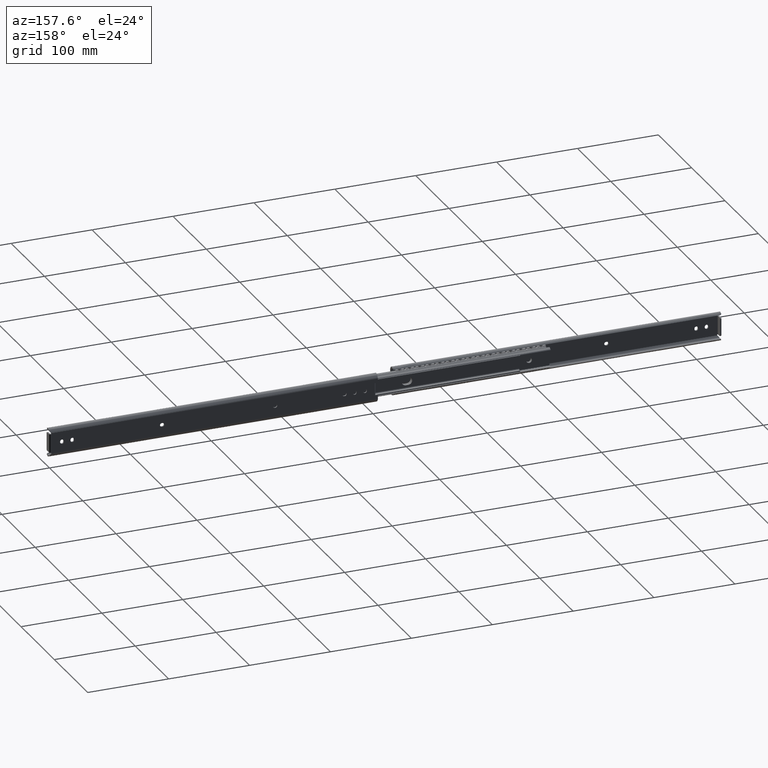
[diagram: clean part render]
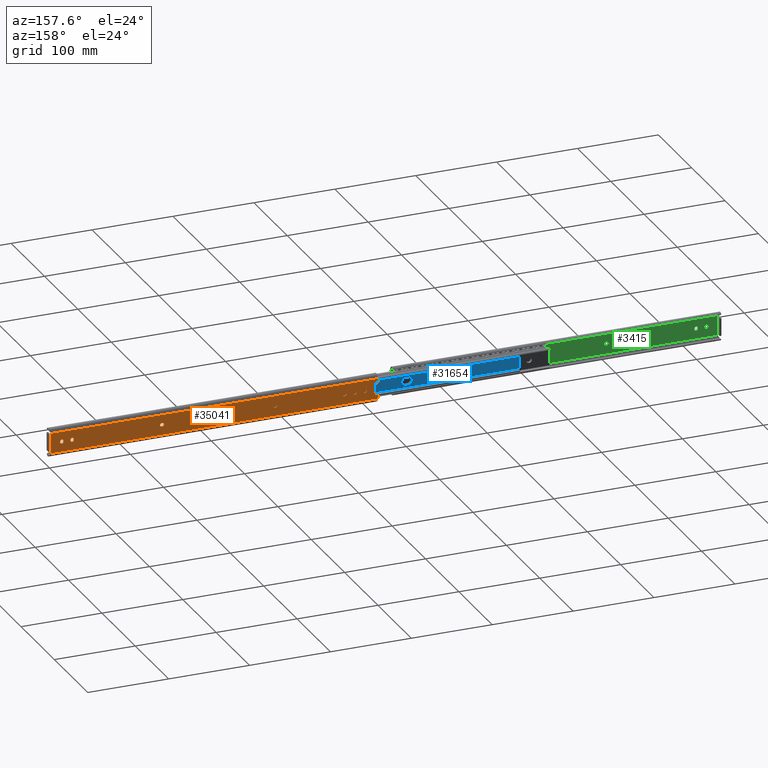
[diagram: same view with three faces highlighted in distinct colors, each labeled with its STEP entity id]
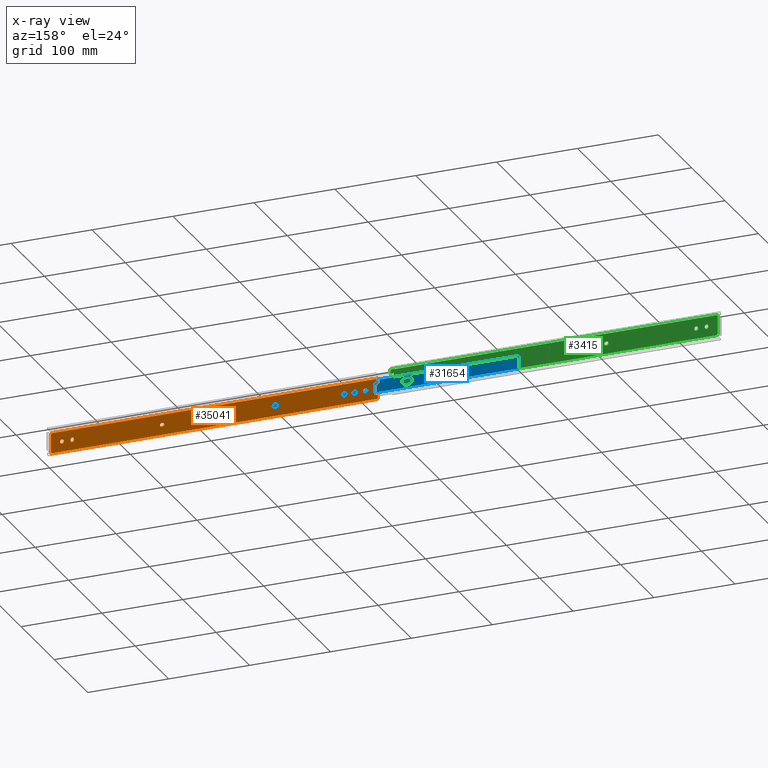
[diagram: x-ray of the same camera — body ghosted, the three highlighted faces saturated]
A machine part, auxiliary view with three faces highlighted in distinct colors.
The next image is the same camera in x-ray (body ghosted, the three faces saturated) — at least one of them is partly hidden behind the body in this view.
Their STEP definitions:

[orange] entity #35041 — the highlighted face is a freeform B-spline surface patch.
#31737=CARTESIAN_POINT('',(-17.750000000000000,0.0,-0.400000000000092));
#31738=VERTEX_POINT('',#31737);
#31746=CARTESIAN_POINT('',(-17.750000000000000,0.0,0.400000000000006));
#31747=VERTEX_POINT('',#31746);
#31748=CARTESIAN_POINT('',(-17.750000000000000,0.0,-0.400000000000092));
#31749=CARTESIAN_POINT('',(-17.750000000000000,0.0,0.400000000000006));
#31750=QUASI_UNIFORM_CURVE('',1,(#31748,#31749),.UNSPECIFIED.,.F.,.U.);
#31751=EDGE_CURVE('',#31738,#31747,#31750,.T.);
#31804=CARTESIAN_POINT('',(-13.250000000000000,0.0,0.400000000000006));
#31805=VERTEX_POINT('',#31804);
#31806=CARTESIAN_POINT('',(-13.250000000000000,0.0,0.400000000000006));
#31807=CARTESIAN_POINT('',(-13.250000000000004,0.0,2.650000000000006));
#31808=CARTESIAN_POINT('',(-15.500000000000000,0.0,2.650000000000005));
#31809=CARTESIAN_POINT('',(-17.750000000000004,0.0,2.650000000000006));
#31810=CARTESIAN_POINT('',(-17.750000000000000,0.0,0.400000000000006));
#31818=(BOUNDED_CURVE()B_SPLINE_CURVE(2,(#31806,#31807,#31808,#31809,#31810),.UNSPECIFIED.,.F.,.U.)B_SPLINE_CURVE_WITH_KNOTS((3,2,3),(0.0,0.500000000000000,1.0),.UNSPECIFIED.)CURVE()GEOMETRIC_REPRESENTATION_ITEM()RATIONAL_B_SPLINE_CURVE((1.0,0.707106781186547,1.0,0.707106781186547,1.0))REPRESENTATION_ITEM(''));
#31819=EDGE_CURVE('',#31805,#31747,#31818,.T.);
#31835=CARTESIAN_POINT('',(-13.250000000000000,0.0,-0.400000000000091));
#31836=VERTEX_POINT('',#31835);
#31837=CARTESIAN_POINT('',(-13.250000000000000,0.0,0.400000000000006));
#31838=CARTESIAN_POINT('',(-13.250000000000000,0.0,-0.400000000000091));
#31839=QUASI_UNIFORM_CURVE('',1,(#31837,#31838),.UNSPECIFIED.,.F.,.U.);
#31840=EDGE_CURVE('',#31805,#31836,#31839,.T.);
#31891=CARTESIAN_POINT('',(-17.750000000000000,0.0,-0.400000000000091));
#31892=CARTESIAN_POINT('',(-17.750000000000004,0.0,-2.650000000000091));
#31893=CARTESIAN_POINT('',(-15.500000000000000,0.0,-2.650000000000091));
#31894=CARTESIAN_POINT('',(-13.250000000000004,0.0,-2.650000000000091));
#31895=CARTESIAN_POINT('',(-13.250000000000000,0.0,-0.400000000000091));
#31903=(BOUNDED_CURVE()B_SPLINE_CURVE(2,(#31891,#31892,#31893,#31894,#31895),.UNSPECIFIED.,.F.,.U.)B_SPLINE_CURVE_WITH_KNOTS((3,2,3),(0.0,0.500000000000000,1.0),.UNSPECIFIED.)CURVE()GEOMETRIC_REPRESENTATION_ITEM()RATIONAL_B_SPLINE_CURVE((1.0,0.707106781186547,1.0,0.707106781186547,1.0))REPRESENTATION_ITEM(''));
#31904=EDGE_CURVE('',#31738,#31836,#31903,.T.);
#31915=CARTESIAN_POINT('',(-375.149999999999980,0.0,0.400000000000007));
#31916=VERTEX_POINT('',#31915);
#31924=CARTESIAN_POINT('',(-375.149999999999980,0.0,-0.400000000000091));
#31925=VERTEX_POINT('',#31924);
#31926=CARTESIAN_POINT('',(-375.149999999999980,0.0,0.400000000000007));
#31927=CARTESIAN_POINT('',(-375.149999999999980,0.0,-0.400000000000091));
#31928=QUASI_UNIFORM_CURVE('',1,(#31926,#31927),.UNSPECIFIED.,.F.,.U.);
#31929=EDGE_CURVE('',#31916,#31925,#31928,.T.);
#31982=CARTESIAN_POINT('',(-379.649999999999980,0.0,-0.400000000000091));
#31983=VERTEX_POINT('',#31982);
#31984=CARTESIAN_POINT('',(-379.649999999999980,0.0,-0.400000000000091));
#31985=CARTESIAN_POINT('',(-379.650000000000090,0.0,-2.650000000000091));
#31986=CARTESIAN_POINT('',(-377.399999999999980,0.0,-2.650000000000091));
#31987=CARTESIAN_POINT('',(-375.150000000000090,0.0,-2.650000000000091));
#31988=CARTESIAN_POINT('',(-375.149999999999980,0.0,-0.400000000000091));
#31996=(BOUNDED_CURVE()B_SPLINE_CURVE(2,(#31984,#31985,#31986,#31987,#31988),.UNSPECIFIED.,.F.,.U.)B_SPLINE_CURVE_WITH_KNOTS((3,2,3),(0.0,0.500000000000000,1.0),.UNSPECIFIED.)CURVE()GEOMETRIC_REPRESENTATION_ITEM()RATIONAL_B_SPLINE_CURVE((1.0,0.707106781186547,1.0,0.707106781186547,1.0))REPRESENTATION_ITEM(''));
#31997=EDGE_CURVE('',#31983,#31925,#31996,.T.);
#32013=CARTESIAN_POINT('',(-379.649999999999980,0.0,0.400000000000006));
#32014=VERTEX_POINT('',#32013);
#32015=CARTESIAN_POINT('',(-379.649999999999980,0.0,-0.400000000000091));
#32016=CARTESIAN_POINT('',(-379.649999999999980,0.0,0.400000000000006));
#32017=QUASI_UNIFORM_CURVE('',1,(#32015,#32016),.UNSPECIFIED.,.F.,.U.);
#32018=EDGE_CURVE('',#31983,#32014,#32017,.T.);
#32069=CARTESIAN_POINT('',(-375.149999999999980,0.0,0.400000000000006));
#32070=CARTESIAN_POINT('',(-375.150000000000090,0.0,2.650000000000006));
#32071=CARTESIAN_POINT('',(-377.399999999999980,0.0,2.650000000000005));
#32072=CARTESIAN_POINT('',(-379.650000000000090,0.0,2.650000000000006));
#32073=CARTESIAN_POINT('',(-379.649999999999980,0.0,0.400000000000006));
#32081=(BOUNDED_CURVE()B_SPLINE_CURVE(2,(#32069,#32070,#32071,#32072,#32073),.UNSPECIFIED.,.F.,.U.)B_SPLINE_CURVE_WITH_KNOTS((3,2,3),(0.0,0.500000000000000,1.0),.UNSPECIFIED.)CURVE()GEOMETRIC_REPRESENTATION_ITEM()RATIONAL_B_SPLINE_CURVE((1.0,0.707106781186547,1.0,0.707106781186547,1.0))REPRESENTATION_ITEM(''));
#32082=EDGE_CURVE('',#31916,#32014,#32081,.T.);
#32093=CARTESIAN_POINT('',(-392.350000000000020,0.0,-0.400000000000092));
#32094=VERTEX_POINT('',#32093);
#32102=CARTESIAN_POINT('',(-392.350000000000020,0.0,0.400000000000006));
#32103=VERTEX_POINT('',#32102);
#32104=CARTESIAN_POINT('',(-392.350000000000020,0.0,-0.400000000000092));
#32105=CARTESIAN_POINT('',(-392.350000000000020,0.0,0.400000000000006));
#32106=QUASI_UNIFORM_CURVE('',1,(#32104,#32105),.UNSPECIFIED.,.F.,.U.);
#32107=EDGE_CURVE('',#32094,#32103,#32106,.T.);
#32160=CARTESIAN_POINT('',(-387.850000000000020,0.0,0.400000000000006));
#32161=VERTEX_POINT('',#32160);
#32162=CARTESIAN_POINT('',(-387.850000000000020,0.0,0.400000000000006));
#32163=CARTESIAN_POINT('',(-387.850000000000080,0.0,2.650000000000006));
#32164=CARTESIAN_POINT('',(-390.100000000000020,0.0,2.650000000000005));
#32165=CARTESIAN_POINT('',(-392.350000000000020,0.0,2.650000000000006));
#32166=CARTESIAN_POINT('',(-392.350000000000020,0.0,0.400000000000006));
#32174=(BOUNDED_CURVE()B_SPLINE_CURVE(2,(#32162,#32163,#32164,#32165,#32166),.UNSPECIFIED.,.F.,.U.)B_SPLINE_CURVE_WITH_KNOTS((3,2,3),(0.0,0.500000000000000,1.0),.UNSPECIFIED.)CURVE()GEOMETRIC_REPRESENTATION_ITEM()RATIONAL_B_SPLINE_CURVE((1.0,0.707106781186547,1.0,0.707106781186547,1.0))REPRESENTATION_ITEM(''));
#32175=EDGE_CURVE('',#32161,#32103,#32174,.T.);
#32191=CARTESIAN_POINT('',(-387.850000000000020,0.0,-0.400000000000091));
#32192=VERTEX_POINT('',#32191);
#32193=CARTESIAN_POINT('',(-387.850000000000020,0.0,0.400000000000006));
#32194=CARTESIAN_POINT('',(-387.850000000000020,0.0,-0.400000000000091));
#32195=QUASI_UNIFORM_CURVE('',1,(#32193,#32194),.UNSPECIFIED.,.F.,.U.);
#32196=EDGE_CURVE('',#32161,#32192,#32195,.T.);
#32247=CARTESIAN_POINT('',(-392.350000000000020,0.0,-0.400000000000091));
#32248=CARTESIAN_POINT('',(-392.350000000000020,0.0,-2.650000000000091));
#32249=CARTESIAN_POINT('',(-390.100000000000020,0.0,-2.650000000000091));
#32250=CARTESIAN_POINT('',(-387.850000000000080,0.0,-2.650000000000091));
#32251=CARTESIAN_POINT('',(-387.850000000000020,0.0,-0.400000000000091));
#32259=(BOUNDED_CURVE()B_SPLINE_CURVE(2,(#32247,#32248,#32249,#32250,#32251),.UNSPECIFIED.,.F.,.U.)B_SPLINE_CURVE_WITH_KNOTS((3,2,3),(0.0,0.500000000000000,1.0),.UNSPECIFIED.)CURVE()GEOMETRIC_REPRESENTATION_ITEM()RATIONAL_B_SPLINE_CURVE((1.0,0.707106781186547,1.0,0.707106781186547,1.0))REPRESENTATION_ITEM(''));
#32260=EDGE_CURVE('',#32094,#32192,#32259,.T.);
#32303=CARTESIAN_POINT('',(-364.300000000000010,0.0,2.250000000000000));
#32304=VERTEX_POINT('',#32303);
#32310=CARTESIAN_POINT('',(-364.300000000000010,0.0,-2.250000000000000));
#32311=VERTEX_POINT('',#32310);
#32312=CARTESIAN_POINT('',(-364.300000000000010,0.0,-2.250000000000000));
#32313=CARTESIAN_POINT('',(-362.049999999999950,0.0,-2.250000000000000));
#32314=CARTESIAN_POINT('',(-362.050000000000010,0.0,0.0));
#32315=CARTESIAN_POINT('',(-362.049999999999950,0.0,2.250000000000000));
#32316=CARTESIAN_POINT('',(-364.300000000000010,0.0,2.250000000000000));
#32324=(BOUNDED_CURVE()B_SPLINE_CURVE(2,(#32312,#32313,#32314,#32315,#32316),.UNSPECIFIED.,.F.,.U.)B_SPLINE_CURVE_WITH_KNOTS((3,2,3),(0.0,0.500000000000000,1.0),.UNSPECIFIED.)CURVE()GEOMETRIC_REPRESENTATION_ITEM()RATIONAL_B_SPLINE_CURVE((1.0,0.707106781186547,1.0,0.707106781186547,1.0))REPRESENTATION_ITEM(''));
#32325=EDGE_CURVE('',#32311,#32304,#32324,.T.);
#32340=CARTESIAN_POINT('',(-365.100000000000020,0.0,2.250000000000000));
#32341=VERTEX_POINT('',#32340);
#32349=CARTESIAN_POINT('',(-365.100000000000020,0.0,2.250000000000000));
#32350=CARTESIAN_POINT('',(-364.300000000000010,0.0,2.250000000000000));
#32351=QUASI_UNIFORM_CURVE('',1,(#32349,#32350),.UNSPECIFIED.,.F.,.U.);
#32352=EDGE_CURVE('',#32341,#32304,#32351,.T.);
#32398=CARTESIAN_POINT('',(-365.100000000000020,0.0,-2.250000000000000));
#32399=VERTEX_POINT('',#32398);
#32405=CARTESIAN_POINT('',(-365.100000000000020,0.0,2.250000000000000));
#32406=CARTESIAN_POINT('',(-367.349999999999970,0.0,2.250000000000000));
#32407=CARTESIAN_POINT('',(-367.350000000000020,0.0,0.0));
#32408=CARTESIAN_POINT('',(-367.349999999999970,0.0,-2.250000000000000));
#32409=CARTESIAN_POINT('',(-365.100000000000020,0.0,-2.250000000000000));
#32417=(BOUNDED_CURVE()B_SPLINE_CURVE(2,(#32405,#32406,#32407,#32408,#32409),.UNSPECIFIED.,.F.,.U.)B_SPLINE_CURVE_WITH_KNOTS((3,2,3),(0.0,0.500000000000000,1.0),.UNSPECIFIED.)CURVE()GEOMETRIC_REPRESENTATION_ITEM()RATIONAL_B_SPLINE_CURVE((1.0,0.707106781186547,1.0,0.707106781186547,1.0))REPRESENTATION_ITEM(''));
#32418=EDGE_CURVE('',#32341,#32399,#32417,.T.);
#32430=CARTESIAN_POINT('',(-364.300000000000010,0.0,-2.250000000000000));
#32431=CARTESIAN_POINT('',(-365.100000000000020,0.0,-2.250000000000000));
#32432=QUASI_UNIFORM_CURVE('',1,(#32430,#32431),.UNSPECIFIED.,.F.,.U.);
#32433=EDGE_CURVE('',#32311,#32399,#32432,.T.);
#32449=CARTESIAN_POINT('',(-30.449999999999999,0.0,-0.400000000000092));
#32450=VERTEX_POINT('',#32449);
#32458=CARTESIAN_POINT('',(-30.449999999999999,0.0,0.400000000000006));
#32459=VERTEX_POINT('',#32458);
#32460=CARTESIAN_POINT('',(-30.449999999999999,0.0,-0.400000000000092));
#32461=CARTESIAN_POINT('',(-30.449999999999999,0.0,0.400000000000006));
#32462=QUASI_UNIFORM_CURVE('',1,(#32460,#32461),.UNSPECIFIED.,.F.,.U.);
#32463=EDGE_CURVE('',#32450,#32459,#32462,.T.);
#32516=CARTESIAN_POINT('',(-25.949999999999999,0.0,0.400000000000006));
#32517=VERTEX_POINT('',#32516);
#32518=CARTESIAN_POINT('',(-25.949999999999999,0.0,0.400000000000006));
#32519=CARTESIAN_POINT('',(-25.950000000000003,0.0,2.650000000000006));
#32520=CARTESIAN_POINT('',(-28.199999999999999,0.0,2.650000000000005));
#32521=CARTESIAN_POINT('',(-30.449999999999999,0.0,2.650000000000006));
#32522=CARTESIAN_POINT('',(-30.449999999999999,0.0,0.400000000000006));
#32530=(BOUNDED_CURVE()B_SPLINE_CURVE(2,(#32518,#32519,#32520,#32521,#32522),.UNSPECIFIED.,.F.,.U.)B_SPLINE_CURVE_WITH_KNOTS((3,2,3),(0.0,0.500000000000000,1.0),.UNSPECIFIED.)CURVE()GEOMETRIC_REPRESENTATION_ITEM()RATIONAL_B_SPLINE_CURVE((1.0,0.707106781186547,1.0,0.707106781186547,1.0))REPRESENTATION_ITEM(''));
#32531=EDGE_CURVE('',#32517,#32459,#32530,.T.);
#32547=CARTESIAN_POINT('',(-25.949999999999999,0.0,-0.400000000000091));
#32548=VERTEX_POINT('',#32547);
#32549=CARTESIAN_POINT('',(-25.949999999999999,0.0,0.400000000000006));
#32550=CARTESIAN_POINT('',(-25.949999999999999,0.0,-0.400000000000091));
#32551=QUASI_UNIFORM_CURVE('',1,(#32549,#32550),.UNSPECIFIED.,.F.,.U.);
#32552=EDGE_CURVE('',#32517,#32548,#32551,.T.);
#32603=CARTESIAN_POINT('',(-30.449999999999999,0.0,-0.400000000000091));
#32604=CARTESIAN_POINT('',(-30.449999999999999,0.0,-2.650000000000091));
#32605=CARTESIAN_POINT('',(-28.199999999999999,0.0,-2.650000000000091));
#32606=CARTESIAN_POINT('',(-25.950000000000003,0.0,-2.650000000000091));
#32607=CARTESIAN_POINT('',(-25.949999999999999,0.0,-0.400000000000091));
#32615=(BOUNDED_CURVE()B_SPLINE_CURVE(2,(#32603,#32604,#32605,#32606,#32607),.UNSPECIFIED.,.F.,.U.)B_SPLINE_CURVE_WITH_KNOTS((3,2,3),(0.0,0.500000000000000,1.0),.UNSPECIFIED.)CURVE()GEOMETRIC_REPRESENTATION_ITEM()RATIONAL_B_SPLINE_CURVE((1.0,0.707106781186547,1.0,0.707106781186547,1.0))REPRESENTATION_ITEM(''));
#32616=EDGE_CURVE('',#32450,#32548,#32615,.T.);
#32659=CARTESIAN_POINT('',(-139.699999999999990,0.0,-2.250000000000000));
#32660=VERTEX_POINT('',#32659);
#32666=CARTESIAN_POINT('',(-139.699999999999990,0.0,2.250000000000000));
#32667=VERTEX_POINT('',#32666);
#32668=CARTESIAN_POINT('',(-139.699999999999990,0.0,2.250000000000000));
#32669=CARTESIAN_POINT('',(-141.949999999999990,0.0,2.250000000000000));
#32670=CARTESIAN_POINT('',(-141.949999999999990,0.0,0.0));
#32671=CARTESIAN_POINT('',(-141.949999999999990,0.0,-2.250000000000000));
#32672=CARTESIAN_POINT('',(-139.699999999999990,0.0,-2.250000000000000));
#32680=(BOUNDED_CURVE()B_SPLINE_CURVE(2,(#32668,#32669,#32670,#32671,#32672),.UNSPECIFIED.,.F.,.U.)B_SPLINE_CURVE_WITH_KNOTS((3,2,3),(0.0,0.500000000000000,1.0),.UNSPECIFIED.)CURVE()GEOMETRIC_REPRESENTATION_ITEM()RATIONAL_B_SPLINE_CURVE((1.0,0.707106781186547,1.0,0.707106781186547,1.0))REPRESENTATION_ITEM(''));
#32681=EDGE_CURVE('',#32667,#32660,#32680,.T.);
#32704=CARTESIAN_POINT('',(-138.900000000000010,0.0,2.250000000000000));
#32705=VERTEX_POINT('',#32704);
#32706=CARTESIAN_POINT('',(-138.900000000000010,0.0,2.250000000000000));
#32707=CARTESIAN_POINT('',(-139.699999999999990,0.0,2.250000000000000));
#32708=QUASI_UNIFORM_CURVE('',1,(#32706,#32707),.UNSPECIFIED.,.F.,.U.);
#32709=EDGE_CURVE('',#32705,#32667,#32708,.T.);
#32755=CARTESIAN_POINT('',(-138.900000000000010,0.0,-2.250000000000000));
#32756=VERTEX_POINT('',#32755);
#32757=CARTESIAN_POINT('',(-138.900000000000010,0.0,-2.250000000000000));
#32758=CARTESIAN_POINT('',(-136.650000000000010,0.0,-2.250000000000000));
#32759=CARTESIAN_POINT('',(-136.650000000000010,0.0,0.0));
#32760=CARTESIAN_POINT('',(-136.650000000000010,0.0,2.250000000000000));
#32761=CARTESIAN_POINT('',(-138.900000000000010,0.0,2.250000000000000));
#32769=(BOUNDED_CURVE()B_SPLINE_CURVE(2,(#32757,#32758,#32759,#32760,#32761),.UNSPECIFIED.,.F.,.U.)B_SPLINE_CURVE_WITH_KNOTS((3,2,3),(0.0,0.500000000000000,1.0),.UNSPECIFIED.)CURVE()GEOMETRIC_REPRESENTATION_ITEM()RATIONAL_B_SPLINE_CURVE((1.0,0.707106781186547,1.0,0.707106781186547,1.0))REPRESENTATION_ITEM(''));
#32770=EDGE_CURVE('',#32756,#32705,#32769,.T.);
#32791=CARTESIAN_POINT('',(-139.699999999999990,0.0,-2.250000000000000));
#32792=CARTESIAN_POINT('',(-138.900000000000010,0.0,-2.250000000000000));
#32793=QUASI_UNIFORM_CURVE('',1,(#32791,#32792),.UNSPECIFIED.,.F.,.U.);
#32794=EDGE_CURVE('',#32660,#32756,#32793,.T.);
#32837=CARTESIAN_POINT('',(-279.399999999999980,0.0,-2.250000000000000));
#32838=VERTEX_POINT('',#32837);
#32844=CARTESIAN_POINT('',(-279.399999999999980,0.0,2.250000000000000));
#32845=VERTEX_POINT('',#32844);
#32846=CARTESIAN_POINT('',(-279.399999999999980,0.0,2.250000000000000));
#32847=CARTESIAN_POINT('',(-281.650000000000030,0.0,2.250000000000000));
#32848=CARTESIAN_POINT('',(-281.649999999999980,0.0,0.0));
#32849=CARTESIAN_POINT('',(-281.650000000000030,0.0,-2.250000000000000));
#32850=CARTESIAN_POINT('',(-279.399999999999980,0.0,-2.250000000000000));
#32858=(BOUNDED_CURVE()B_SPLINE_CURVE(2,(#32846,#32847,#32848,#32849,#32850),.UNSPECIFIED.,.F.,.U.)B_SPLINE_CURVE_WITH_KNOTS((3,2,3),(0.0,0.500000000000000,1.0),.UNSPECIFIED.)CURVE()GEOMETRIC_REPRESENTATION_ITEM()RATIONAL_B_SPLINE_CURVE((1.0,0.707106781186547,1.0,0.707106781186547,1.0))REPRESENTATION_ITEM(''));
#32859=EDGE_CURVE('',#32845,#32838,#32858,.T.);
#32874=CARTESIAN_POINT('',(-278.600000000000020,0.0,-2.250000000000000));
#32875=VERTEX_POINT('',#32874);
#32883=CARTESIAN_POINT('',(-278.600000000000020,0.0,-2.250000000000000));
#32884=CARTESIAN_POINT('',(-279.399999999999980,0.0,-2.250000000000000));
#32885=QUASI_UNIFORM_CURVE('',1,(#32883,#32884),.UNSPECIFIED.,.F.,.U.);
#32886=EDGE_CURVE('',#32875,#32838,#32885,.T.);
#32932=CARTESIAN_POINT('',(-278.600000000000020,0.0,2.250000000000000));
#32933=VERTEX_POINT('',#32932);
#32939=CARTESIAN_POINT('',(-278.600000000000020,0.0,-2.250000000000000));
#32940=CARTESIAN_POINT('',(-276.350000000000020,0.0,-2.250000000000000));
#32941=CARTESIAN_POINT('',(-276.350000000000020,0.0,0.0));
#32942=CARTESIAN_POINT('',(-276.350000000000020,0.0,2.250000000000000));
#32943=CARTESIAN_POINT('',(-278.600000000000020,0.0,2.250000000000000));
#32951=(BOUNDED_CURVE()B_SPLINE_CURVE(2,(#32939,#32940,#32941,#32942,#32943),.UNSPECIFIED.,.F.,.U.)B_SPLINE_CURVE_WITH_KNOTS((3,2,3),(0.0,0.500000000000000,1.0),.UNSPECIFIED.)CURVE()GEOMETRIC_REPRESENTATION_ITEM()RATIONAL_B_SPLINE_CURVE((1.0,0.707106781186547,1.0,0.707106781186547,1.0))REPRESENTATION_ITEM(''));
#32952=EDGE_CURVE('',#32875,#32933,#32951,.T.);
#32964=CARTESIAN_POINT('',(-279.399999999999980,0.0,2.250000000000000));
#32965=CARTESIAN_POINT('',(-278.600000000000020,0.0,2.250000000000000));
#32966=QUASI_UNIFORM_CURVE('',1,(#32964,#32965),.UNSPECIFIED.,.F.,.U.);
#32967=EDGE_CURVE('',#32845,#32933,#32966,.T.);
#32994=CARTESIAN_POINT('',(-1.599999999999910,0.0,11.500000000000000));
#32995=VERTEX_POINT('',#32994);
#33016=CARTESIAN_POINT('',(-1.599999999999910,0.0,-11.500000000000000));
#33017=VERTEX_POINT('',#33016);
#33031=CARTESIAN_POINT('',(-1.599999999999910,0.0,11.500000000000000));
#33032=CARTESIAN_POINT('',(-1.599999999999910,0.0,-11.500000000000000));
#33033=QUASI_UNIFORM_CURVE('',1,(#33031,#33032),.UNSPECIFIED.,.F.,.U.);
#33034=EDGE_CURVE('',#32995,#33017,#33033,.T.);
#33053=CARTESIAN_POINT('',(-401.899999999999980,0.0,7.500000000000000));
#33054=VERTEX_POINT('',#33053);
#33070=CARTESIAN_POINT('',(-401.899999999999980,0.0,-7.500000000000200));
#33071=VERTEX_POINT('',#33070);
#33072=CARTESIAN_POINT('',(-401.899999999999980,0.0,-7.500000000000200));
#33073=CARTESIAN_POINT('',(-401.899999999999980,0.0,7.500000000000000));
#33074=QUASI_UNIFORM_CURVE('',1,(#33072,#33073),.UNSPECIFIED.,.F.,.U.);
#33075=EDGE_CURVE('',#33071,#33054,#33074,.T.);
#33827=CARTESIAN_POINT('',(-406.0,0.0,7.500000000000000));
#33828=VERTEX_POINT('',#33827);
#33836=CARTESIAN_POINT('',(-406.0,0.0,7.500000000000000));
#33837=CARTESIAN_POINT('',(-401.899999999999980,0.0,7.500000000000000));
#33838=QUASI_UNIFORM_CURVE('',1,(#33836,#33837),.UNSPECIFIED.,.F.,.U.);
#33839=EDGE_CURVE('',#33828,#33054,#33838,.T.);
#33863=CARTESIAN_POINT('',(-406.0,0.0,-7.500000000000200));
#33864=VERTEX_POINT('',#33863);
#33865=CARTESIAN_POINT('',(-401.899999999999980,0.0,-7.500000000000200));
#33866=CARTESIAN_POINT('',(-406.0,0.0,-7.500000000000200));
#33867=QUASI_UNIFORM_CURVE('',1,(#33865,#33866),.UNSPECIFIED.,.F.,.U.);
#33868=EDGE_CURVE('',#33071,#33864,#33867,.T.);
#34034=CARTESIAN_POINT('',(-2.360134746260105,0.0,12.578915999999900));
#34035=VERTEX_POINT('',#34034);
#34036=CARTESIAN_POINT('',(-2.360134746260107,0.0,12.578915999999900));
#34037=CARTESIAN_POINT('',(-2.501066018639306,0.0,12.184613891433322));
#34038=CARTESIAN_POINT('',(-2.259898584542990,0.0,11.842306945716659));
#34039=CARTESIAN_POINT('',(-2.018731150446674,0.0,11.499999999999998));
#34040=CARTESIAN_POINT('',(-1.599999999999910,0.0,11.500000000000000));
#34048=(BOUNDED_CURVE()B_SPLINE_CURVE(2,(#34036,#34037,#34038,#34039,#34040),.UNSPECIFIED.,.F.,.U.)B_SPLINE_CURVE_WITH_KNOTS((3,2,3),(0.0,0.500000000000000,1.0),.UNSPECIFIED.)CURVE()GEOMETRIC_REPRESENTATION_ITEM()RATIONAL_B_SPLINE_CURVE((1.0,0.887679040060811,1.0,0.887679040060811,1.0))REPRESENTATION_ITEM(''));
#34049=EDGE_CURVE('',#34035,#32995,#34048,.T.);
#34244=CARTESIAN_POINT('',(-2.360134746260075,0.0,-12.578916000000000));
#34245=VERTEX_POINT('',#34244);
#34246=CARTESIAN_POINT('',(-1.599999999999910,0.0,-11.500000000000000));
#34247=CARTESIAN_POINT('',(-2.018731150446707,0.0,-11.500000000000000));
#34248=CARTESIAN_POINT('',(-2.259898584543020,0.0,-11.842306945716700));
#34249=CARTESIAN_POINT('',(-2.501066018639334,0.0,-12.184613891433404));
#34250=CARTESIAN_POINT('',(-2.360134746260072,0.0,-12.578916000000000));
#34258=(BOUNDED_CURVE()B_SPLINE_CURVE(2,(#34246,#34247,#34248,#34249,#34250),.UNSPECIFIED.,.F.,.U.)B_SPLINE_CURVE_WITH_KNOTS((3,2,3),(0.0,0.500000000000000,1.0),.UNSPECIFIED.)CURVE()GEOMETRIC_REPRESENTATION_ITEM()RATIONAL_B_SPLINE_CURVE((1.0,0.887679040060796,1.0,0.887679040060796,1.0))REPRESENTATION_ITEM(''));
#34259=EDGE_CURVE('',#33017,#34245,#34258,.T.);
#34626=CARTESIAN_POINT('',(-406.0,0.0,-12.578916000000000));
#34627=VERTEX_POINT('',#34626);
#34628=CARTESIAN_POINT('',(-2.360134746260075,0.0,-12.578916000000000));
#34629=CARTESIAN_POINT('',(-406.0,0.0,-12.578916000000000));
#34630=QUASI_UNIFORM_CURVE('',1,(#34628,#34629),.UNSPECIFIED.,.F.,.U.);
#34631=EDGE_CURVE('',#34245,#34627,#34630,.T.);
#34668=CARTESIAN_POINT('',(-406.0,1.091571E-012,12.578915999999900));
#34669=VERTEX_POINT('',#34668);
#34670=CARTESIAN_POINT('',(-2.360134746260105,0.0,12.578915999999900));
#34671=CARTESIAN_POINT('',(-406.0,1.091571E-012,12.578915999999900));
#34672=QUASI_UNIFORM_CURVE('',1,(#34670,#34671),.UNSPECIFIED.,.F.,.U.);
#34673=EDGE_CURVE('',#34035,#34669,#34672,.T.);
#34927=CARTESIAN_POINT('',(-406.0,1.091571E-012,12.578915999999900));
#34928=CARTESIAN_POINT('',(-406.0,0.0,7.500000000000000));
#34929=QUASI_UNIFORM_CURVE('',1,(#34927,#34928),.UNSPECIFIED.,.F.,.U.);
#34930=EDGE_CURVE('',#34669,#33828,#34929,.T.);
#34959=CARTESIAN_POINT('',(-406.0,0.0,-7.500000000000200));
#34960=CARTESIAN_POINT('',(-406.0,0.0,-12.578916000000000));
#34961=QUASI_UNIFORM_CURVE('',1,(#34959,#34960),.UNSPECIFIED.,.F.,.U.);
#34962=EDGE_CURVE('',#33864,#34627,#34961,.T.);
#34982=CARTESIAN_POINT('',(-426.199779216194490,0.0,-13.835549333594059));
#34983=CARTESIAN_POINT('',(-426.199779216194490,0.0,13.835548433879779));
#34984=CARTESIAN_POINT('',(18.599790063047720,0.0,-13.835549333594059));
#34985=CARTESIAN_POINT('',(18.599790063047720,0.0,13.835548433879779));
#34986=B_SPLINE_SURFACE_WITH_KNOTS('',1,1,((#34982,#34984),(#34983,#34985)),.UNSPECIFIED.,.F.,.F.,.U.,(2,2),(2,2),(0.0,27.671097767473839),(0.0,444.799569279242180),.UNSPECIFIED.);
#34987=ORIENTED_EDGE('',*,*,#33868,.F.);
#34988=ORIENTED_EDGE('',*,*,#33075,.T.);
#34989=ORIENTED_EDGE('',*,*,#33839,.F.);
#34990=ORIENTED_EDGE('',*,*,#34930,.F.);
#34991=ORIENTED_EDGE('',*,*,#34673,.F.);
#34992=ORIENTED_EDGE('',*,*,#34049,.T.);
#34993=ORIENTED_EDGE('',*,*,#33034,.T.);
#34994=ORIENTED_EDGE('',*,*,#34259,.T.);
#34995=ORIENTED_EDGE('',*,*,#34631,.T.);
#34996=ORIENTED_EDGE('',*,*,#34962,.F.);
#34997=EDGE_LOOP('',(#34987,#34988,#34989,#34990,#34991,#34992,#34993,#34994,#34995,#34996));
#34998=FACE_OUTER_BOUND('',#34997,.T.);
#34999=ORIENTED_EDGE('',*,*,#32082,.T.);
#35000=ORIENTED_EDGE('',*,*,#32018,.F.);
#35001=ORIENTED_EDGE('',*,*,#31997,.T.);
#35002=ORIENTED_EDGE('',*,*,#31929,.F.);
#35003=EDGE_LOOP('',(#34999,#35000,#35001,#35002));
#35004=FACE_BOUND('',#35003,.T.);
#35005=ORIENTED_EDGE('',*,*,#32260,.T.);
#35006=ORIENTED_EDGE('',*,*,#32196,.F.);
#35007=ORIENTED_EDGE('',*,*,#32175,.T.);
#35008=ORIENTED_EDGE('',*,*,#32107,.F.);
#35009=EDGE_LOOP('',(#35005,#35006,#35007,#35008));
#35010=FACE_BOUND('',#35009,.T.);
#35011=ORIENTED_EDGE('',*,*,#32952,.T.);
#35012=ORIENTED_EDGE('',*,*,#32967,.F.);
#35013=ORIENTED_EDGE('',*,*,#32859,.T.);
#35014=ORIENTED_EDGE('',*,*,#32886,.F.);
#35015=EDGE_LOOP('',(#35011,#35012,#35013,#35014));
#35016=FACE_BOUND('',#35015,.T.);
#35017=ORIENTED_EDGE('',*,*,#31904,.T.);
#35018=ORIENTED_EDGE('',*,*,#31840,.F.);
#35019=ORIENTED_EDGE('',*,*,#31819,.T.);
#35020=ORIENTED_EDGE('',*,*,#31751,.F.);
#35021=EDGE_LOOP('',(#35017,#35018,#35019,#35020));
#35022=FACE_BOUND('',#35021,.T.);
#35023=ORIENTED_EDGE('',*,*,#32794,.T.);
#35024=ORIENTED_EDGE('',*,*,#32770,.T.);
#35025=ORIENTED_EDGE('',*,*,#32709,.T.);
#35026=ORIENTED_EDGE('',*,*,#32681,.T.);
#35027=EDGE_LOOP('',(#35023,#35024,#35025,#35026));
#35028=FACE_BOUND('',#35027,.T.);
#35029=ORIENTED_EDGE('',*,*,#32616,.T.);
#35030=ORIENTED_EDGE('',*,*,#32552,.F.);
#35031=ORIENTED_EDGE('',*,*,#32531,.T.);
#35032=ORIENTED_EDGE('',*,*,#32463,.F.);
#35033=EDGE_LOOP('',(#35029,#35030,#35031,#35032));
#35034=FACE_BOUND('',#35033,.T.);
#35035=ORIENTED_EDGE('',*,*,#32418,.T.);
#35036=ORIENTED_EDGE('',*,*,#32433,.F.);
#35037=ORIENTED_EDGE('',*,*,#32325,.T.);
#35038=ORIENTED_EDGE('',*,*,#32352,.F.);
#35039=EDGE_LOOP('',(#35035,#35036,#35037,#35038));
#35040=FACE_BOUND('',#35039,.T.);
#35041=ADVANCED_FACE('',(#34998,#35004,#35010,#35016,#35022,#35028,#35034,#35040),#34986,.T.);

[blue] entity #31654 — the highlighted face is a freeform B-spline surface patch.
#29239=CARTESIAN_POINT('',(-242.075533342076600,-7.100000000000001,-0.413119822949315));
#29240=VERTEX_POINT('',#29239);
#29241=CARTESIAN_POINT('',(-238.599999999999990,-7.100000000000001,3.500000000000000));
#29242=VERTEX_POINT('',#29241);
#29243=CARTESIAN_POINT('',(-242.075533342076650,-7.100000000000001,-0.413119822949315));
#29244=CARTESIAN_POINT('',(-242.099999999999990,-7.100000000000001,-0.207284420449796));
#29245=CARTESIAN_POINT('',(-242.099999999999990,-7.100000000000001,0.0));
#29246=CARTESIAN_POINT('',(-242.100000000000080,-7.100000000000001,3.500000000000000));
#29247=CARTESIAN_POINT('',(-238.599999999999990,-7.100000000000001,3.500000000000000));
#29255=(BOUNDED_CURVE()B_SPLINE_CURVE(2,(#29243,#29244,#29245,#29246,#29247),.UNSPECIFIED.,.F.,.U.)B_SPLINE_CURVE_WITH_KNOTS((3,2,3),(0.229562473355112,0.250000000000000,0.500000000000000),.UNSPECIFIED.)CURVE()GEOMETRIC_REPRESENTATION_ITEM()RATIONAL_B_SPLINE_CURVE((0.956026753873237,0.976055948145573,1.0,0.707106781186547,1.0))REPRESENTATION_ITEM(''));
#29256=EDGE_CURVE('',#29240,#29242,#29255,.T.);
#29258=CARTESIAN_POINT('',(-235.106528205662900,-7.100000000000001,0.213669890651931));
#29259=VERTEX_POINT('',#29258);
#29260=CARTESIAN_POINT('',(-238.599999999999990,-7.100000000000001,3.500000000000000));
#29261=CARTESIAN_POINT('',(-235.307528770135520,-7.100000000000000,3.500000000000000));
#29262=CARTESIAN_POINT('',(-235.106528205662930,-7.100000000000001,0.213669890651931));
#29270=(BOUNDED_CURVE()B_SPLINE_CURVE(2,(#29260,#29261,#29262),.UNSPECIFIED.,.F.,.U.)B_SPLINE_CURVE_WITH_KNOTS((3,3),(0.500000000000000,0.739332962016752),.UNSPECIFIED.)CURVE()GEOMETRIC_REPRESENTATION_ITEM()RATIONAL_B_SPLINE_CURVE((1.0,0.719603993547023,0.976072041190520))REPRESENTATION_ITEM(''));
#29271=EDGE_CURVE('',#29242,#29259,#29270,.T.);
#29338=CARTESIAN_POINT('',(-238.599999999999990,-7.100000000000001,-3.500000000000000));
#29339=VERTEX_POINT('',#29338);
#29340=CARTESIAN_POINT('',(-238.599999999999990,-7.100000000000001,-3.500000000000000));
#29341=CARTESIAN_POINT('',(-241.708610837856180,-7.100000000000000,-3.500000000000000));
#29342=CARTESIAN_POINT('',(-242.075533342076680,-7.100000000000001,-0.413119822949315));
#29350=(BOUNDED_CURVE()B_SPLINE_CURVE(2,(#29340,#29341,#29342),.UNSPECIFIED.,.F.,.U.)B_SPLINE_CURVE_WITH_KNOTS((3,3),(0.0,0.229562473355112),.UNSPECIFIED.)CURVE()GEOMETRIC_REPRESENTATION_ITEM()RATIONAL_B_SPLINE_CURVE((1.0,0.731050833040975,0.956026753873237))REPRESENTATION_ITEM(''));
#29351=EDGE_CURVE('',#29339,#29240,#29350,.T.);
#29385=CARTESIAN_POINT('',(-235.106528205662900,-7.100000000000001,0.213669890651931));
#29386=CARTESIAN_POINT('',(-235.100000000000020,-7.100000000000001,0.106934673831386));
#29387=CARTESIAN_POINT('',(-235.099999999999990,-7.100000000000001,0.0));
#29388=CARTESIAN_POINT('',(-235.099999999999970,-7.100000000000001,-3.500000000000000));
#29389=CARTESIAN_POINT('',(-238.599999999999990,-7.100000000000001,-3.500000000000000));
#29397=(BOUNDED_CURVE()B_SPLINE_CURVE(2,(#29385,#29386,#29387,#29388,#29389),.UNSPECIFIED.,.F.,.U.)B_SPLINE_CURVE_WITH_KNOTS((3,2,3),(0.739332962016751,0.750000000000000,1.0),.UNSPECIFIED.)CURVE()GEOMETRIC_REPRESENTATION_ITEM()RATIONAL_B_SPLINE_CURVE((0.976072041190518,0.987502787639523,1.0,0.707106781186547,1.0))REPRESENTATION_ITEM(''));
#29398=EDGE_CURVE('',#29259,#29339,#29397,.T.);
#29968=CARTESIAN_POINT('',(-391.600000000000020,-7.100000000000001,4.999999999999800));
#29969=VERTEX_POINT('',#29968);
#29975=CARTESIAN_POINT('',(-388.600000000000020,-7.100000000000001,5.0));
#29976=VERTEX_POINT('',#29975);
#29977=CARTESIAN_POINT('',(-391.600000000000020,-7.100000000000001,4.999999999999800));
#29978=CARTESIAN_POINT('',(-388.600000000000020,-7.100000000000001,5.0));
#29979=QUASI_UNIFORM_CURVE('',1,(#29977,#29978),.UNSPECIFIED.,.F.,.U.);
#29980=EDGE_CURVE('',#29969,#29976,#29979,.T.);
#30016=CARTESIAN_POINT('',(-388.600000000000020,-7.100000000000001,-5.0));
#30017=VERTEX_POINT('',#30016);
#30018=CARTESIAN_POINT('',(-388.600000000000020,-7.100000000000001,5.0));
#30019=CARTESIAN_POINT('',(-383.600000000000080,-7.100000000000001,5.000000000000001));
#30020=CARTESIAN_POINT('',(-383.600000000000020,-7.100000000000001,0.0));
#30021=CARTESIAN_POINT('',(-383.600000000000080,-7.100000000000001,-5.000000000000001));
#30022=CARTESIAN_POINT('',(-388.600000000000020,-7.100000000000001,-5.0));
#30030=(BOUNDED_CURVE()B_SPLINE_CURVE(2,(#30018,#30019,#30020,#30021,#30022),.UNSPECIFIED.,.F.,.U.)B_SPLINE_CURVE_WITH_KNOTS((3,2,3),(0.0,0.500000000000000,1.0),.UNSPECIFIED.)CURVE()GEOMETRIC_REPRESENTATION_ITEM()RATIONAL_B_SPLINE_CURVE((1.0,0.707106781186548,1.0,0.707106781186548,1.0))REPRESENTATION_ITEM(''));
#30031=EDGE_CURVE('',#29976,#30017,#30030,.T.);
#30064=CARTESIAN_POINT('',(-391.600000000000020,-7.100000000000001,-5.0));
#30065=VERTEX_POINT('',#30064);
#30066=CARTESIAN_POINT('',(-388.600000000000020,-7.100000000000001,-5.0));
#30067=CARTESIAN_POINT('',(-391.600000000000020,-7.100000000000001,-5.0));
#30068=QUASI_UNIFORM_CURVE('',1,(#30066,#30067),.UNSPECIFIED.,.F.,.U.);
#30069=EDGE_CURVE('',#30017,#30065,#30068,.T.);
#30105=CARTESIAN_POINT('',(-391.600000000000020,-7.100000000000001,-5.0));
#30106=CARTESIAN_POINT('',(-396.600000000000020,-7.100000000000001,-5.000000000000001));
#30107=CARTESIAN_POINT('',(-396.600000000000020,-7.100000000000001,0.0));
#30108=CARTESIAN_POINT('',(-396.600000000000020,-7.100000000000001,5.000000000000001));
#30109=CARTESIAN_POINT('',(-391.600000000000020,-7.100000000000001,5.0));
#30117=(BOUNDED_CURVE()B_SPLINE_CURVE(2,(#30105,#30106,#30107,#30108,#30109),.UNSPECIFIED.,.F.,.U.)B_SPLINE_CURVE_WITH_KNOTS((3,2,3),(0.0,0.500000000000000,1.0),.UNSPECIFIED.)CURVE()GEOMETRIC_REPRESENTATION_ITEM()RATIONAL_B_SPLINE_CURVE((1.0,0.707106781186548,1.0,0.707106781186548,1.0))REPRESENTATION_ITEM(''));
#30118=EDGE_CURVE('',#30065,#29969,#30117,.T.);
#30159=CARTESIAN_POINT('',(-443.399999999999980,-7.100000000000001,5.0));
#30160=VERTEX_POINT('',#30159);
#30166=CARTESIAN_POINT('',(-443.399999999999980,-7.100000000000001,-5.0));
#30167=VERTEX_POINT('',#30166);
#30168=CARTESIAN_POINT('',(-443.399999999999980,-7.100000000000001,5.0));
#30169=CARTESIAN_POINT('',(-438.400000000000090,-7.100000000000001,5.000000000000001));
#30170=CARTESIAN_POINT('',(-438.399999999999980,-7.100000000000001,0.0));
#30171=CARTESIAN_POINT('',(-438.400000000000090,-7.100000000000001,-5.000000000000001));
#30172=CARTESIAN_POINT('',(-443.399999999999980,-7.100000000000001,-5.0));
#30180=(BOUNDED_CURVE()B_SPLINE_CURVE(2,(#30168,#30169,#30170,#30171,#30172),.UNSPECIFIED.,.F.,.U.)B_SPLINE_CURVE_WITH_KNOTS((3,2,3),(0.0,0.500000000000000,1.0),.UNSPECIFIED.)CURVE()GEOMETRIC_REPRESENTATION_ITEM()RATIONAL_B_SPLINE_CURVE((1.0,0.707106781186548,1.0,0.707106781186548,1.0))REPRESENTATION_ITEM(''));
#30181=EDGE_CURVE('',#30160,#30167,#30180,.T.);
#30214=CARTESIAN_POINT('',(-446.399999999999980,-7.100000000000001,-5.0));
#30215=VERTEX_POINT('',#30214);
#30216=CARTESIAN_POINT('',(-443.399999999999980,-7.100000000000001,-5.0));
#30217=CARTESIAN_POINT('',(-446.399999999999980,-7.100000000000001,-5.0));
#30218=QUASI_UNIFORM_CURVE('',1,(#30216,#30217),.UNSPECIFIED.,.F.,.U.);
#30219=EDGE_CURVE('',#30167,#30215,#30218,.T.);
#30255=CARTESIAN_POINT('',(-446.399999999999980,-7.100000000000001,5.0));
#30256=VERTEX_POINT('',#30255);
#30257=CARTESIAN_POINT('',(-446.399999999999980,-7.100000000000001,-5.0));
#30258=CARTESIAN_POINT('',(-451.400000000000030,-7.100000000000001,-5.000000000000001));
#30259=CARTESIAN_POINT('',(-451.399999999999980,-7.100000000000001,0.0));
#30260=CARTESIAN_POINT('',(-451.400000000000030,-7.100000000000001,5.000000000000001));
#30261=CARTESIAN_POINT('',(-446.399999999999980,-7.100000000000001,5.0));
#30269=(BOUNDED_CURVE()B_SPLINE_CURVE(2,(#30257,#30258,#30259,#30260,#30261),.UNSPECIFIED.,.F.,.U.)B_SPLINE_CURVE_WITH_KNOTS((3,2,3),(0.0,0.500000000000000,1.0),.UNSPECIFIED.)CURVE()GEOMETRIC_REPRESENTATION_ITEM()RATIONAL_B_SPLINE_CURVE((1.0,0.707106781186548,1.0,0.707106781186548,1.0))REPRESENTATION_ITEM(''));
#30270=EDGE_CURVE('',#30215,#30256,#30269,.T.);
#30303=CARTESIAN_POINT('',(-446.399999999999980,-7.100000000000001,5.0));
#30304=CARTESIAN_POINT('',(-443.399999999999980,-7.100000000000001,5.0));
#30305=QUASI_UNIFORM_CURVE('',1,(#30303,#30304),.UNSPECIFIED.,.F.,.U.);
#30306=EDGE_CURVE('',#30256,#30160,#30305,.T.);
#30475=CARTESIAN_POINT('',(-217.800000000000010,-7.100000000000001,-7.687500000000000));
#30476=VERTEX_POINT('',#30475);
#30490=CARTESIAN_POINT('',(-217.800000000000010,-7.100000000000001,7.687499999999799));
#30491=VERTEX_POINT('',#30490);
#30492=CARTESIAN_POINT('',(-217.800000000000010,-7.100000000000001,7.687499999999799));
#30493=CARTESIAN_POINT('',(-217.800000000000010,-7.100000000000001,-7.687500000000000));
#30494=QUASI_UNIFORM_CURVE('',1,(#30492,#30493),.UNSPECIFIED.,.F.,.U.);
#30495=EDGE_CURVE('',#30491,#30476,#30494,.T.);
#30518=CARTESIAN_POINT('',(-583.399999999999980,-7.100000000000001,7.687499999999799));
#30519=VERTEX_POINT('',#30518);
#30535=CARTESIAN_POINT('',(-583.399999999999980,-7.100000000000001,-7.687500000000000));
#30536=VERTEX_POINT('',#30535);
#30537=CARTESIAN_POINT('',(-583.399999999999980,-7.100000000000001,-7.687500000000000));
#30538=CARTESIAN_POINT('',(-583.399999999999980,-7.100000000000001,7.687499999999799));
#30539=QUASI_UNIFORM_CURVE('',1,(#30537,#30538),.UNSPECIFIED.,.F.,.U.);
#30540=EDGE_CURVE('',#30536,#30519,#30539,.T.);
#30695=CARTESIAN_POINT('',(-217.800000000000010,-7.100000000000001,-7.687500000000000));
#30696=CARTESIAN_POINT('',(-583.399999999999980,-7.100000000000001,-7.687500000000000));
#30697=QUASI_UNIFORM_CURVE('',1,(#30695,#30696),.UNSPECIFIED.,.F.,.U.);
#30698=EDGE_CURVE('',#30476,#30536,#30697,.T.);
#30960=CARTESIAN_POINT('',(-217.800000000000010,-7.100000000000001,7.687499999999799));
#30961=CARTESIAN_POINT('',(-583.399999999999980,-7.100000000000001,7.687499999999799));
#30962=QUASI_UNIFORM_CURVE('',1,(#30960,#30961),.UNSPECIFIED.,.F.,.U.);
#30963=EDGE_CURVE('',#30491,#30519,#30962,.T.);
#31625=CARTESIAN_POINT('',(-601.661746747325990,-7.100000000000001,8.455481220200058));
#31626=CARTESIAN_POINT('',(-601.661746747325990,-7.100000000000001,-8.455481632589891));
#31627=CARTESIAN_POINT('',(-199.538269596267610,-7.100000000000001,8.455481220200058));
#31628=CARTESIAN_POINT('',(-199.538269596267610,-7.100000000000001,-8.455481632589891));
#31629=B_SPLINE_SURFACE_WITH_KNOTS('',1,1,((#31625,#31627),(#31626,#31628)),.UNSPECIFIED.,.F.,.F.,.U.,(2,2),(2,2),(0.0,16.910962852789950),(0.0,402.123477151058410),.UNSPECIFIED.);
#31630=ORIENTED_EDGE('',*,*,#30963,.F.);
#31631=ORIENTED_EDGE('',*,*,#30495,.T.);
#31632=ORIENTED_EDGE('',*,*,#30698,.T.);
#31633=ORIENTED_EDGE('',*,*,#30540,.T.);
#31634=EDGE_LOOP('',(#31630,#31631,#31632,#31633));
#31635=FACE_OUTER_BOUND('',#31634,.T.);
#31636=ORIENTED_EDGE('',*,*,#30306,.F.);
#31637=ORIENTED_EDGE('',*,*,#30270,.F.);
#31638=ORIENTED_EDGE('',*,*,#30219,.F.);
#31639=ORIENTED_EDGE('',*,*,#30181,.F.);
#31640=EDGE_LOOP('',(#31636,#31637,#31638,#31639));
#31641=FACE_BOUND('',#31640,.T.);
#31642=ORIENTED_EDGE('',*,*,#30118,.F.);
#31643=ORIENTED_EDGE('',*,*,#30069,.F.);
#31644=ORIENTED_EDGE('',*,*,#30031,.F.);
#31645=ORIENTED_EDGE('',*,*,#29980,.F.);
#31646=EDGE_LOOP('',(#31642,#31643,#31644,#31645));
#31647=FACE_BOUND('',#31646,.T.);
#31648=ORIENTED_EDGE('',*,*,#29271,.F.);
#31649=ORIENTED_EDGE('',*,*,#29256,.F.);
#31650=ORIENTED_EDGE('',*,*,#29351,.F.);
#31651=ORIENTED_EDGE('',*,*,#29398,.F.);
#31652=EDGE_LOOP('',(#31648,#31649,#31650,#31651));
#31653=FACE_BOUND('',#31652,.T.);
#31654=ADVANCED_FACE('',(#31635,#31641,#31647,#31653),#31629,.F.);

[green] entity #3415 — the highlighted face is a freeform B-spline surface patch.
#51=CARTESIAN_POINT('',(-817.250000000000000,-17.500000000000849,-0.400000000000092));
#52=VERTEX_POINT('',#51);
#65=CARTESIAN_POINT('',(-817.250000000000000,-17.500000000000899,0.400000000000006));
#66=VERTEX_POINT('',#65);
#72=CARTESIAN_POINT('',(-817.250000000000000,-17.500000000000849,-0.400000000000092));
#73=CARTESIAN_POINT('',(-817.250000000000000,-17.500000000000899,0.400000000000006));
#74=QUASI_UNIFORM_CURVE('',1,(#72,#73),.UNSPECIFIED.,.F.,.U.);
#75=EDGE_CURVE('',#52,#66,#74,.T.);
#98=CARTESIAN_POINT('',(-821.750000000000000,-17.500000000000849,0.400000000000006));
#99=VERTEX_POINT('',#98);
#100=CARTESIAN_POINT('',(-821.750000000000000,-17.500000000000849,0.400000000000006));
#101=CARTESIAN_POINT('',(-821.750000000000110,-17.500000000000849,2.650000000000006));
#102=CARTESIAN_POINT('',(-819.500000000000000,-17.500000000000849,2.650000000000005));
#103=CARTESIAN_POINT('',(-817.250000000000000,-17.500000000000849,2.650000000000006));
#104=CARTESIAN_POINT('',(-817.250000000000000,-17.500000000000849,0.400000000000006));
#112=(BOUNDED_CURVE()B_SPLINE_CURVE(2,(#100,#101,#102,#103,#104),.UNSPECIFIED.,.F.,.U.)B_SPLINE_CURVE_WITH_KNOTS((3,2,3),(0.0,0.500000000000000,1.0),.UNSPECIFIED.)CURVE()GEOMETRIC_REPRESENTATION_ITEM()RATIONAL_B_SPLINE_CURVE((1.0,0.707106781186547,1.0,0.707106781186547,1.0))REPRESENTATION_ITEM(''));
#113=EDGE_CURVE('',#99,#66,#112,.T.);
#154=CARTESIAN_POINT('',(-821.750000000000000,-17.500000000000849,-0.400000000000092));
#155=VERTEX_POINT('',#154);
#161=CARTESIAN_POINT('',(-821.750000000000000,-17.500000000000849,0.400000000000006));
#162=CARTESIAN_POINT('',(-821.750000000000000,-17.500000000000849,-0.400000000000092));
#163=QUASI_UNIFORM_CURVE('',1,(#161,#162),.UNSPECIFIED.,.F.,.U.);
#164=EDGE_CURVE('',#99,#155,#163,.T.);
#187=CARTESIAN_POINT('',(-817.250000000000000,-17.500000000000849,-0.400000000000092));
#188=CARTESIAN_POINT('',(-817.250000000000000,-17.500000000000849,-2.650000000000091));
#189=CARTESIAN_POINT('',(-819.500000000000000,-17.500000000000849,-2.650000000000091));
#190=CARTESIAN_POINT('',(-821.750000000000110,-17.500000000000849,-2.650000000000091));
#191=CARTESIAN_POINT('',(-821.750000000000000,-17.500000000000849,-0.400000000000092));
#199=(BOUNDED_CURVE()B_SPLINE_CURVE(2,(#187,#188,#189,#190,#191),.UNSPECIFIED.,.F.,.U.)B_SPLINE_CURVE_WITH_KNOTS((3,2,3),(0.0,0.500000000000000,1.0),.UNSPECIFIED.)CURVE()GEOMETRIC_REPRESENTATION_ITEM()RATIONAL_B_SPLINE_CURVE((1.0,0.707106781186547,1.0,0.707106781186547,1.0))REPRESENTATION_ITEM(''));
#200=EDGE_CURVE('',#52,#155,#199,.T.);
#229=CARTESIAN_POINT('',(-459.850000000000020,-17.500000000000849,0.400000000000006));
#230=VERTEX_POINT('',#229);
#243=CARTESIAN_POINT('',(-459.850000000000020,-17.500000000000899,-0.400000000000092));
#244=VERTEX_POINT('',#243);
#250=CARTESIAN_POINT('',(-459.850000000000020,-17.500000000000849,0.400000000000006));
#251=CARTESIAN_POINT('',(-459.850000000000020,-17.500000000000899,-0.400000000000092));
#252=QUASI_UNIFORM_CURVE('',1,(#250,#251),.UNSPECIFIED.,.F.,.U.);
#253=EDGE_CURVE('',#230,#244,#252,.T.);
#276=CARTESIAN_POINT('',(-455.350000000000020,-17.500000000000849,-0.400000000000092));
#277=VERTEX_POINT('',#276);
#278=CARTESIAN_POINT('',(-455.350000000000020,-17.500000000000849,-0.400000000000092));
#279=CARTESIAN_POINT('',(-455.350000000000020,-17.500000000000849,-2.650000000000091));
#280=CARTESIAN_POINT('',(-457.600000000000020,-17.500000000000849,-2.650000000000091));
#281=CARTESIAN_POINT('',(-459.850000000000080,-17.500000000000849,-2.650000000000091));
#282=CARTESIAN_POINT('',(-459.850000000000020,-17.500000000000849,-0.400000000000092));
#290=(BOUNDED_CURVE()B_SPLINE_CURVE(2,(#278,#279,#280,#281,#282),.UNSPECIFIED.,.F.,.U.)B_SPLINE_CURVE_WITH_KNOTS((3,2,3),(0.0,0.500000000000000,1.0),.UNSPECIFIED.)CURVE()GEOMETRIC_REPRESENTATION_ITEM()RATIONAL_B_SPLINE_CURVE((1.0,0.707106781186547,1.0,0.707106781186547,1.0))REPRESENTATION_ITEM(''));
#291=EDGE_CURVE('',#277,#244,#290,.T.);
#332=CARTESIAN_POINT('',(-455.350000000000020,-17.500000000000849,0.400000000000006));
#333=VERTEX_POINT('',#332);
#339=CARTESIAN_POINT('',(-455.350000000000020,-17.500000000000849,-0.400000000000092));
#340=CARTESIAN_POINT('',(-455.350000000000020,-17.500000000000849,0.400000000000006));
#341=QUASI_UNIFORM_CURVE('',1,(#339,#340),.UNSPECIFIED.,.F.,.U.);
#342=EDGE_CURVE('',#277,#333,#341,.T.);
#365=CARTESIAN_POINT('',(-459.850000000000020,-17.500000000000849,0.400000000000006));
#366=CARTESIAN_POINT('',(-459.850000000000080,-17.500000000000849,2.650000000000006));
#367=CARTESIAN_POINT('',(-457.600000000000020,-17.500000000000849,2.650000000000005));
#368=CARTESIAN_POINT('',(-455.350000000000020,-17.500000000000849,2.650000000000006));
#369=CARTESIAN_POINT('',(-455.350000000000020,-17.500000000000849,0.400000000000006));
#377=(BOUNDED_CURVE()B_SPLINE_CURVE(2,(#365,#366,#367,#368,#369),.UNSPECIFIED.,.F.,.U.)B_SPLINE_CURVE_WITH_KNOTS((3,2,3),(0.0,0.500000000000000,1.0),.UNSPECIFIED.)CURVE()GEOMETRIC_REPRESENTATION_ITEM()RATIONAL_B_SPLINE_CURVE((1.0,0.707106781186547,1.0,0.707106781186547,1.0))REPRESENTATION_ITEM(''));
#378=EDGE_CURVE('',#230,#333,#377,.T.);
#407=CARTESIAN_POINT('',(-442.649999999999980,-17.500000000000849,-0.400000000000092));
#408=VERTEX_POINT('',#407);
#421=CARTESIAN_POINT('',(-442.649999999999980,-17.500000000000899,0.400000000000006));
#422=VERTEX_POINT('',#421);
#428=CARTESIAN_POINT('',(-442.649999999999980,-17.500000000000849,-0.400000000000092));
#429=CARTESIAN_POINT('',(-442.649999999999980,-17.500000000000899,0.400000000000006));
#430=QUASI_UNIFORM_CURVE('',1,(#428,#429),.UNSPECIFIED.,.F.,.U.);
#431=EDGE_CURVE('',#408,#422,#430,.T.);
#454=CARTESIAN_POINT('',(-447.149999999999980,-17.500000000000849,0.400000000000006));
#455=VERTEX_POINT('',#454);
#456=CARTESIAN_POINT('',(-447.149999999999980,-17.500000000000849,0.400000000000006));
#457=CARTESIAN_POINT('',(-447.150000000000030,-17.500000000000849,2.650000000000006));
#458=CARTESIAN_POINT('',(-444.899999999999980,-17.500000000000849,2.650000000000005));
#459=CARTESIAN_POINT('',(-442.650000000000150,-17.500000000000849,2.650000000000006));
#460=CARTESIAN_POINT('',(-442.649999999999980,-17.500000000000849,0.400000000000006));
#468=(BOUNDED_CURVE()B_SPLINE_CURVE(2,(#456,#457,#458,#459,#460),.UNSPECIFIED.,.F.,.U.)B_SPLINE_CURVE_WITH_KNOTS((3,2,3),(0.0,0.500000000000000,1.0),.UNSPECIFIED.)CURVE()GEOMETRIC_REPRESENTATION_ITEM()RATIONAL_B_SPLINE_CURVE((1.0,0.707106781186547,1.0,0.707106781186547,1.0))REPRESENTATION_ITEM(''));
#469=EDGE_CURVE('',#455,#422,#468,.T.);
#510=CARTESIAN_POINT('',(-447.149999999999980,-17.500000000000849,-0.400000000000092));
#511=VERTEX_POINT('',#510);
#517=CARTESIAN_POINT('',(-447.149999999999980,-17.500000000000849,0.400000000000006));
#518=CARTESIAN_POINT('',(-447.149999999999980,-17.500000000000849,-0.400000000000092));
#519=QUASI_UNIFORM_CURVE('',1,(#517,#518),.UNSPECIFIED.,.F.,.U.);
#520=EDGE_CURVE('',#455,#511,#519,.T.);
#543=CARTESIAN_POINT('',(-442.649999999999980,-17.500000000000849,-0.400000000000092));
#544=CARTESIAN_POINT('',(-442.650000000000150,-17.500000000000849,-2.650000000000091));
#545=CARTESIAN_POINT('',(-444.899999999999980,-17.500000000000849,-2.650000000000091));
#546=CARTESIAN_POINT('',(-447.150000000000030,-17.500000000000849,-2.650000000000091));
#547=CARTESIAN_POINT('',(-447.149999999999980,-17.500000000000849,-0.400000000000092));
#555=(BOUNDED_CURVE()B_SPLINE_CURVE(2,(#543,#544,#545,#546,#547),.UNSPECIFIED.,.F.,.U.)B_SPLINE_CURVE_WITH_KNOTS((3,2,3),(0.0,0.500000000000000,1.0),.UNSPECIFIED.)CURVE()GEOMETRIC_REPRESENTATION_ITEM()RATIONAL_B_SPLINE_CURVE((1.0,0.707106781186547,1.0,0.707106781186547,1.0))REPRESENTATION_ITEM(''));
#556=EDGE_CURVE('',#408,#511,#555,.T.);
#596=CARTESIAN_POINT('',(-470.699999999999990,-17.500000000000849,-2.250000000000000));
#597=VERTEX_POINT('',#596);
#598=CARTESIAN_POINT('',(-470.699999999999990,-17.500000000000849,2.250000000000000));
#599=VERTEX_POINT('',#598);
#600=CARTESIAN_POINT('',(-470.699999999999990,-17.500000000000849,-2.250000000000000));
#601=CARTESIAN_POINT('',(-472.949999999999930,-17.500000000000849,-2.250000000000000));
#602=CARTESIAN_POINT('',(-472.949999999999990,-17.500000000000849,-3.768519E-016));
#603=CARTESIAN_POINT('',(-472.949999999999930,-17.500000000000849,2.250000000000000));
#604=CARTESIAN_POINT('',(-470.699999999999990,-17.500000000000849,2.250000000000000));
#612=(BOUNDED_CURVE()B_SPLINE_CURVE(2,(#600,#601,#602,#603,#604),.UNSPECIFIED.,.F.,.U.)B_SPLINE_CURVE_WITH_KNOTS((3,2,3),(0.0,0.500000000000000,1.0),.UNSPECIFIED.)CURVE()GEOMETRIC_REPRESENTATION_ITEM()RATIONAL_B_SPLINE_CURVE((1.0,0.707106781186547,1.0,0.707106781186547,1.0))REPRESENTATION_ITEM(''));
#613=EDGE_CURVE('',#597,#599,#612,.T.);
#654=CARTESIAN_POINT('',(-469.899999999999980,-17.500000000000849,2.250000000000000));
#655=VERTEX_POINT('',#654);
#667=CARTESIAN_POINT('',(-469.899999999999980,-17.500000000000849,2.250000000000000));
#668=CARTESIAN_POINT('',(-470.699999999999990,-17.500000000000849,2.250000000000000));
#669=QUASI_UNIFORM_CURVE('',1,(#667,#668),.UNSPECIFIED.,.F.,.U.);
#670=EDGE_CURVE('',#655,#599,#669,.T.);
#693=CARTESIAN_POINT('',(-469.899999999999980,-17.500000000000849,-2.250000000000000));
#694=VERTEX_POINT('',#693);
#695=CARTESIAN_POINT('',(-469.899999999999980,-17.500000000000849,2.250000000000000));
#696=CARTESIAN_POINT('',(-467.649999999999920,-17.500000000000849,2.250000000000000));
#697=CARTESIAN_POINT('',(-467.649999999999980,-17.500000000000849,-3.768519E-016));
#698=CARTESIAN_POINT('',(-467.649999999999920,-17.500000000000849,-2.250000000000000));
#699=CARTESIAN_POINT('',(-469.899999999999980,-17.500000000000849,-2.250000000000000));
#707=(BOUNDED_CURVE()B_SPLINE_CURVE(2,(#695,#696,#697,#698,#699),.UNSPECIFIED.,.F.,.U.)B_SPLINE_CURVE_WITH_KNOTS((3,2,3),(0.0,0.500000000000000,1.0),.UNSPECIFIED.)CURVE()GEOMETRIC_REPRESENTATION_ITEM()RATIONAL_B_SPLINE_CURVE((1.0,0.707106781186547,1.0,0.707106781186547,1.0))REPRESENTATION_ITEM(''));
#708=EDGE_CURVE('',#655,#694,#707,.T.);
#748=CARTESIAN_POINT('',(-470.699999999999990,-17.500000000000849,-2.250000000000000));
#749=CARTESIAN_POINT('',(-469.899999999999980,-17.500000000000849,-2.250000000000000));
#750=QUASI_UNIFORM_CURVE('',1,(#748,#749),.UNSPECIFIED.,.F.,.U.);
#751=EDGE_CURVE('',#597,#694,#750,.T.);
#763=CARTESIAN_POINT('',(-804.549999999999950,-17.500000000000849,-0.400000000000092));
#764=VERTEX_POINT('',#763);
#777=CARTESIAN_POINT('',(-804.549999999999950,-17.500000000000899,0.400000000000006));
#778=VERTEX_POINT('',#777);
#784=CARTESIAN_POINT('',(-804.549999999999950,-17.500000000000849,-0.400000000000092));
#785=CARTESIAN_POINT('',(-804.549999999999950,-17.500000000000899,0.400000000000006));
#786=QUASI_UNIFORM_CURVE('',1,(#784,#785),.UNSPECIFIED.,.F.,.U.);
#787=EDGE_CURVE('',#764,#778,#786,.T.);
#810=CARTESIAN_POINT('',(-809.050000000000070,-17.500000000000849,0.400000000000006));
#811=VERTEX_POINT('',#810);
#812=CARTESIAN_POINT('',(-809.049999999999950,-17.500000000000849,0.400000000000006));
#813=CARTESIAN_POINT('',(-809.049999999999730,-17.500000000000849,2.650000000000006));
#814=CARTESIAN_POINT('',(-806.799999999999950,-17.500000000000849,2.650000000000005));
#815=CARTESIAN_POINT('',(-804.549999999999950,-17.500000000000849,2.650000000000006));
#816=CARTESIAN_POINT('',(-804.549999999999950,-17.500000000000849,0.400000000000006));
#824=(BOUNDED_CURVE()B_SPLINE_CURVE(2,(#812,#813,#814,#815,#816),.UNSPECIFIED.,.F.,.U.)B_SPLINE_CURVE_WITH_KNOTS((3,2,3),(0.0,0.500000000000000,1.0),.UNSPECIFIED.)CURVE()GEOMETRIC_REPRESENTATION_ITEM()RATIONAL_B_SPLINE_CURVE((1.0,0.707106781186547,1.0,0.707106781186547,1.0))REPRESENTATION_ITEM(''));
#825=EDGE_CURVE('',#811,#778,#824,.T.);
#866=CARTESIAN_POINT('',(-809.050000000000070,-17.500000000000849,-0.400000000000092));
#867=VERTEX_POINT('',#866);
#873=CARTESIAN_POINT('',(-809.050000000000070,-17.500000000000849,0.400000000000006));
#874=CARTESIAN_POINT('',(-809.050000000000070,-17.500000000000849,-0.400000000000092));
#875=QUASI_UNIFORM_CURVE('',1,(#873,#874),.UNSPECIFIED.,.F.,.U.);
#876=EDGE_CURVE('',#811,#867,#875,.T.);
#899=CARTESIAN_POINT('',(-804.549999999999950,-17.500000000000849,-0.400000000000092));
#900=CARTESIAN_POINT('',(-804.549999999999950,-17.500000000000849,-2.650000000000091));
#901=CARTESIAN_POINT('',(-806.799999999999950,-17.500000000000849,-2.650000000000091));
#902=CARTESIAN_POINT('',(-809.049999999999730,-17.500000000000849,-2.650000000000091));
#903=CARTESIAN_POINT('',(-809.049999999999950,-17.500000000000849,-0.400000000000092));
#911=(BOUNDED_CURVE()B_SPLINE_CURVE(2,(#899,#900,#901,#902,#903),.UNSPECIFIED.,.F.,.U.)B_SPLINE_CURVE_WITH_KNOTS((3,2,3),(0.0,0.500000000000000,1.0),.UNSPECIFIED.)CURVE()GEOMETRIC_REPRESENTATION_ITEM()RATIONAL_B_SPLINE_CURVE((1.0,0.707106781186547,1.0,0.707106781186547,1.0))REPRESENTATION_ITEM(''));
#912=EDGE_CURVE('',#764,#867,#911,.T.);
#952=CARTESIAN_POINT('',(-695.300000000000070,-17.500000000000849,2.250000000000000));
#953=VERTEX_POINT('',#952);
#954=CARTESIAN_POINT('',(-695.300000000000070,-17.500000000000849,-2.250000000000000));
#955=VERTEX_POINT('',#954);
#956=CARTESIAN_POINT('',(-695.300000000000070,-17.500000000000849,2.250000000000000));
#957=CARTESIAN_POINT('',(-693.050000000000070,-17.500000000000849,2.250000000000000));
#958=CARTESIAN_POINT('',(-693.050000000000070,-17.500000000000849,-3.768519E-016));
#959=CARTESIAN_POINT('',(-693.050000000000070,-17.500000000000849,-2.250000000000000));
#960=CARTESIAN_POINT('',(-695.300000000000070,-17.500000000000849,-2.250000000000000));
#968=(BOUNDED_CURVE()B_SPLINE_CURVE(2,(#956,#957,#958,#959,#960),.UNSPECIFIED.,.F.,.U.)B_SPLINE_CURVE_WITH_KNOTS((3,2,3),(0.0,0.500000000000000,1.0),.UNSPECIFIED.)CURVE()GEOMETRIC_REPRESENTATION_ITEM()RATIONAL_B_SPLINE_CURVE((1.0,0.707106781186547,1.0,0.707106781186547,1.0))REPRESENTATION_ITEM(''));
#969=EDGE_CURVE('',#953,#955,#968,.T.);
#1008=CARTESIAN_POINT('',(-696.100000000000020,-17.500000000000849,2.250000000000000));
#1009=VERTEX_POINT('',#1008);
#1010=CARTESIAN_POINT('',(-696.100000000000020,-17.500000000000849,2.250000000000000));
#1011=CARTESIAN_POINT('',(-695.300000000000070,-17.500000000000849,2.250000000000000));
#1012=QUASI_UNIFORM_CURVE('',1,(#1010,#1011),.UNSPECIFIED.,.F.,.U.);
#1013=EDGE_CURVE('',#1009,#953,#1012,.T.);
#1049=CARTESIAN_POINT('',(-696.100000000000020,-17.500000000000849,-2.250000000000000));
#1050=VERTEX_POINT('',#1049);
#1051=CARTESIAN_POINT('',(-696.100000000000020,-17.500000000000849,-2.250000000000000));
#1052=CARTESIAN_POINT('',(-698.349999999999910,-17.500000000000849,-2.250000000000000));
#1053=CARTESIAN_POINT('',(-698.350000000000020,-17.500000000000849,-3.768519E-016));
#1054=CARTESIAN_POINT('',(-698.349999999999910,-17.500000000000849,2.250000000000000));
#1055=CARTESIAN_POINT('',(-696.100000000000020,-17.500000000000849,2.250000000000000));
#1063=(BOUNDED_CURVE()B_SPLINE_CURVE(2,(#1051,#1052,#1053,#1054,#1055),.UNSPECIFIED.,.F.,.U.)B_SPLINE_CURVE_WITH_KNOTS((3,2,3),(0.0,0.500000000000000,1.0),.UNSPECIFIED.)CURVE()GEOMETRIC_REPRESENTATION_ITEM()RATIONAL_B_SPLINE_CURVE((1.0,0.707106781186547,1.0,0.707106781186547,1.0))REPRESENTATION_ITEM(''));
#1064=EDGE_CURVE('',#1050,#1009,#1063,.T.);
#1097=CARTESIAN_POINT('',(-695.300000000000070,-17.500000000000849,-2.250000000000000));
#1098=CARTESIAN_POINT('',(-696.100000000000020,-17.500000000000849,-2.250000000000000));
#1099=QUASI_UNIFORM_CURVE('',1,(#1097,#1098),.UNSPECIFIED.,.F.,.U.);
#1100=EDGE_CURVE('',#955,#1050,#1099,.T.);
#1130=CARTESIAN_POINT('',(-555.600000000000020,-17.500000000000849,2.250000000000000));
#1131=VERTEX_POINT('',#1130);
#1132=CARTESIAN_POINT('',(-555.600000000000020,-17.500000000000849,-2.250000000000200));
#1133=VERTEX_POINT('',#1132);
#1134=CARTESIAN_POINT('',(-555.600000000000020,-17.500000000000849,2.250000000000000));
#1135=CARTESIAN_POINT('',(-553.350000000000140,-17.500000000000849,2.250000000000000));
#1136=CARTESIAN_POINT('',(-553.350000000000020,-17.500000000000849,-3.768519E-016));
#1137=CARTESIAN_POINT('',(-553.350000000000140,-17.500000000000849,-2.250000000000000));
#1138=CARTESIAN_POINT('',(-555.600000000000020,-17.500000000000849,-2.250000000000000));
#1146=(BOUNDED_CURVE()B_SPLINE_CURVE(2,(#1134,#1135,#1136,#1137,#1138),.UNSPECIFIED.,.F.,.U.)B_SPLINE_CURVE_WITH_KNOTS((3,2,3),(0.0,0.500000000000000,1.0),.UNSPECIFIED.)CURVE()GEOMETRIC_REPRESENTATION_ITEM()RATIONAL_B_SPLINE_CURVE((1.0,0.707106781186547,1.0,0.707106781186547,1.0))REPRESENTATION_ITEM(''));
#1147=EDGE_CURVE('',#1131,#1133,#1146,.T.);
#1188=CARTESIAN_POINT('',(-556.399999999999980,-17.500000000000849,-2.250000000000000));
#1189=VERTEX_POINT('',#1188);
#1201=CARTESIAN_POINT('',(-556.399999999999980,-17.500000000000849,-2.250000000000000));
#1202=CARTESIAN_POINT('',(-555.600000000000020,-17.500000000000849,-2.250000000000200));
#1203=QUASI_UNIFORM_CURVE('',1,(#1201,#1202),.UNSPECIFIED.,.F.,.U.);
#1204=EDGE_CURVE('',#1189,#1133,#1203,.T.);
#1227=CARTESIAN_POINT('',(-556.399999999999980,-17.500000000000849,2.250000000000000));
#1228=VERTEX_POINT('',#1227);
#1229=CARTESIAN_POINT('',(-556.399999999999980,-17.500000000000849,-2.250000000000000));
#1230=CARTESIAN_POINT('',(-558.649999999999980,-17.500000000000849,-2.250000000000000));
#1231=CARTESIAN_POINT('',(-558.649999999999980,-17.500000000000849,-3.768519E-016));
#1232=CARTESIAN_POINT('',(-558.649999999999980,-17.500000000000849,2.250000000000000));
#1233=CARTESIAN_POINT('',(-556.399999999999980,-17.500000000000849,2.250000000000000));
#1241=(BOUNDED_CURVE()B_SPLINE_CURVE(2,(#1229,#1230,#1231,#1232,#1233),.UNSPECIFIED.,.F.,.U.)B_SPLINE_CURVE_WITH_KNOTS((3,2,3),(0.0,0.500000000000000,1.0),.UNSPECIFIED.)CURVE()GEOMETRIC_REPRESENTATION_ITEM()RATIONAL_B_SPLINE_CURVE((1.0,0.707106781186547,1.0,0.707106781186547,1.0))REPRESENTATION_ITEM(''));
#1242=EDGE_CURVE('',#1189,#1228,#1241,.T.);
#1282=CARTESIAN_POINT('',(-555.600000000000020,-17.500000000000849,2.250000000000000));
#1283=CARTESIAN_POINT('',(-556.399999999999980,-17.500000000000849,2.250000000000000));
#1284=QUASI_UNIFORM_CURVE('',1,(#1282,#1283),.UNSPECIFIED.,.F.,.U.);
#1285=EDGE_CURVE('',#1131,#1228,#1284,.T.);
#1367=CARTESIAN_POINT('',(-431.500000000000000,-17.500000000000849,7.500000000000000));
#1368=VERTEX_POINT('',#1367);
#1389=CARTESIAN_POINT('',(-431.500000000000000,-17.500000000000849,-7.500000000000200));
#1390=VERTEX_POINT('',#1389);
#1789=CARTESIAN_POINT('',(-833.399999999999980,-17.500000000000849,-11.500000000000000));
#1790=VERTEX_POINT('',#1789);
#1791=CARTESIAN_POINT('',(-833.399999999999980,-17.500000000000849,11.500000000000000));
#1792=VERTEX_POINT('',#1791);
#1793=CARTESIAN_POINT('',(-833.399999999999980,-17.500000000000849,-11.500000000000000));
#1794=CARTESIAN_POINT('',(-833.399999999999980,-17.500000000000849,11.500000000000000));
#1795=QUASI_UNIFORM_CURVE('',1,(#1793,#1794),.UNSPECIFIED.,.F.,.U.);
#1796=EDGE_CURVE('',#1790,#1792,#1795,.T.);
#1963=CARTESIAN_POINT('',(-433.100000000000020,-17.500000000000899,-7.500000000000200));
#1964=VERTEX_POINT('',#1963);
#1970=CARTESIAN_POINT('',(-433.100000000000020,-17.500000000000899,7.500000000000000));
#1971=VERTEX_POINT('',#1970);
#1972=CARTESIAN_POINT('',(-433.100000000000020,-17.500000000000899,-7.500000000000200));
#1973=CARTESIAN_POINT('',(-433.100000000000020,-17.500000000000899,7.500000000000000));
#1974=QUASI_UNIFORM_CURVE('',1,(#1972,#1973),.UNSPECIFIED.,.F.,.U.);
#1975=EDGE_CURVE('',#1964,#1971,#1974,.T.);
#1997=CARTESIAN_POINT('',(-433.100000000000020,-17.500000000000899,-7.500000000000200));
#1998=CARTESIAN_POINT('',(-431.500000000000000,-17.500000000000849,-7.500000000000200));
#1999=QUASI_UNIFORM_CURVE('',1,(#1997,#1998),.UNSPECIFIED.,.F.,.U.);
#2000=EDGE_CURVE('',#1964,#1390,#1999,.T.);
#2045=CARTESIAN_POINT('',(-431.500000000000000,-17.500000000000849,7.500000000000000));
#2046=CARTESIAN_POINT('',(-433.100000000000020,-17.500000000000899,7.500000000000000));
#2047=QUASI_UNIFORM_CURVE('',1,(#2045,#2046),.UNSPECIFIED.,.F.,.U.);
#2048=EDGE_CURVE('',#1368,#1971,#2047,.T.);
#2141=CARTESIAN_POINT('',(-429.0,-17.500000000000899,7.500000000000000));
#2142=VERTEX_POINT('',#2141);
#2154=CARTESIAN_POINT('',(-429.0,-17.500000000000899,7.500000000000000));
#2155=CARTESIAN_POINT('',(-431.500000000000000,-17.500000000000849,7.500000000000000));
#2156=QUASI_UNIFORM_CURVE('',1,(#2154,#2155),.UNSPECIFIED.,.F.,.U.);
#2157=EDGE_CURVE('',#2142,#1368,#2156,.T.);
#2167=CARTESIAN_POINT('',(-429.0,-17.500000000000949,-7.500000000000200));
#2168=VERTEX_POINT('',#2167);
#2169=CARTESIAN_POINT('',(-431.500000000000000,-17.500000000000849,-7.500000000000200));
#2170=CARTESIAN_POINT('',(-429.0,-17.500000000000949,-7.500000000000200));
#2171=QUASI_UNIFORM_CURVE('',1,(#2169,#2170),.UNSPECIFIED.,.F.,.U.);
#2172=EDGE_CURVE('',#1390,#2168,#2171,.T.);
#2319=CARTESIAN_POINT('',(-832.639865253740030,-17.500000000000998,12.578915999999900));
#2320=VERTEX_POINT('',#2319);
#2330=CARTESIAN_POINT('',(-832.639865253739910,-17.500000000000849,12.578915999999960));
#2331=CARTESIAN_POINT('',(-832.498933981360660,-17.500000000000849,12.184613891433369));
#2332=CARTESIAN_POINT('',(-832.740101415456930,-17.500000000000849,11.842306945716681));
#2333=CARTESIAN_POINT('',(-832.981268849553320,-17.500000000000849,11.500000000000005));
#2334=CARTESIAN_POINT('',(-833.399999999999980,-17.500000000000849,11.500000000000000));
#2342=(BOUNDED_CURVE()B_SPLINE_CURVE(2,(#2330,#2331,#2332,#2333,#2334),.UNSPECIFIED.,.F.,.U.)B_SPLINE_CURVE_WITH_KNOTS((3,2,3),(0.0,0.500000000000000,1.0),.UNSPECIFIED.)CURVE()GEOMETRIC_REPRESENTATION_ITEM()RATIONAL_B_SPLINE_CURVE((1.0,0.887679040060803,1.0,0.887679040060803,1.0))REPRESENTATION_ITEM(''));
#2343=EDGE_CURVE('',#2320,#1792,#2342,.T.);
#2574=CARTESIAN_POINT('',(-832.639865253740030,-17.500000000000849,-12.578916000000000));
#2575=VERTEX_POINT('',#2574);
#2576=CARTESIAN_POINT('',(-833.399999999999980,-17.500000000000849,-11.500000000000000));
#2577=CARTESIAN_POINT('',(-832.981268849553200,-17.500000000000856,-11.499999999999998));
#2578=CARTESIAN_POINT('',(-832.740101415456930,-17.500000000000849,-11.842306945716720));
#2579=CARTESIAN_POINT('',(-832.498933981360550,-17.500000000000856,-12.184613891433452));
#2580=CARTESIAN_POINT('',(-832.639865253739910,-17.500000000000849,-12.578916000000040));
#2588=(BOUNDED_CURVE()B_SPLINE_CURVE(2,(#2576,#2577,#2578,#2579,#2580),.UNSPECIFIED.,.F.,.U.)B_SPLINE_CURVE_WITH_KNOTS((3,2,3),(0.0,0.500000000000000,1.0),.UNSPECIFIED.)CURVE()GEOMETRIC_REPRESENTATION_ITEM()RATIONAL_B_SPLINE_CURVE((1.0,0.887679040060790,1.0,0.887679040060790,1.0))REPRESENTATION_ITEM(''));
#2589=EDGE_CURVE('',#1790,#2575,#2588,.T.);
#2746=CARTESIAN_POINT('',(-429.0,-17.500000000000899,12.578915999999900));
#2747=VERTEX_POINT('',#2746);
#2761=CARTESIAN_POINT('',(-832.639865253740030,-17.500000000000998,12.578915999999900));
#2762=CARTESIAN_POINT('',(-429.0,-17.500000000000899,12.578915999999900));
#2763=QUASI_UNIFORM_CURVE('',1,(#2761,#2762),.UNSPECIFIED.,.F.,.U.);
#2764=EDGE_CURVE('',#2320,#2747,#2763,.T.);
#2784=CARTESIAN_POINT('',(-429.0,-17.500000000000998,-12.578916000000000));
#2785=VERTEX_POINT('',#2784);
#2786=CARTESIAN_POINT('',(-832.639865253740030,-17.500000000000849,-12.578916000000000));
#2787=CARTESIAN_POINT('',(-429.0,-17.500000000000998,-12.578916000000000));
#2788=QUASI_UNIFORM_CURVE('',1,(#2786,#2787),.UNSPECIFIED.,.F.,.U.);
#2789=EDGE_CURVE('',#2575,#2785,#2788,.T.);
#3245=CARTESIAN_POINT('',(-429.0,-17.500000000000899,7.500000000000000));
#3246=CARTESIAN_POINT('',(-429.0,-17.500000000000899,12.578915999999900));
#3247=QUASI_UNIFORM_CURVE('',1,(#3245,#3246),.UNSPECIFIED.,.F.,.U.);
#3248=EDGE_CURVE('',#2142,#2747,#3247,.T.);
#3265=CARTESIAN_POINT('',(-429.0,-17.500000000000998,-12.578916000000000));
#3266=CARTESIAN_POINT('',(-429.0,-17.500000000000949,-7.500000000000200));
#3267=QUASI_UNIFORM_CURVE('',1,(#3265,#3266),.UNSPECIFIED.,.F.,.U.);
#3268=EDGE_CURVE('',#2785,#2168,#3267,.T.);
#3354=CARTESIAN_POINT('',(-408.800219339004680,-17.500000000000899,13.835549333593960));
#3355=CARTESIAN_POINT('',(-408.800219339004680,-17.500000000000899,-13.835548433879881));
#3356=CARTESIAN_POINT('',(-853.599820432790580,-17.500000000000899,13.835549333593960));
#3357=CARTESIAN_POINT('',(-853.599820432790580,-17.500000000000899,-13.835548433879881));
#3358=B_SPLINE_SURFACE_WITH_KNOTS('',1,1,((#3354,#3356),(#3355,#3357)),.UNSPECIFIED.,.F.,.F.,.U.,(2,2),(2,2),(0.0,27.671097767473839),(0.0,444.799601093785780),.UNSPECIFIED.);
#3359=ORIENTED_EDGE('',*,*,#2589,.F.);
#3360=ORIENTED_EDGE('',*,*,#1796,.T.);
#3361=ORIENTED_EDGE('',*,*,#2343,.F.);
#3362=ORIENTED_EDGE('',*,*,#2764,.T.);
#3363=ORIENTED_EDGE('',*,*,#3248,.F.);
#3364=ORIENTED_EDGE('',*,*,#2157,.T.);
#3365=ORIENTED_EDGE('',*,*,#2048,.T.);
#3366=ORIENTED_EDGE('',*,*,#1975,.F.);
#3367=ORIENTED_EDGE('',*,*,#2000,.T.);
#3368=ORIENTED_EDGE('',*,*,#2172,.T.);
#3369=ORIENTED_EDGE('',*,*,#3268,.F.);
#3370=ORIENTED_EDGE('',*,*,#2789,.F.);
#3371=EDGE_LOOP('',(#3359,#3360,#3361,#3362,#3363,#3364,#3365,#3366,#3367,#3368,#3369,#3370));
#3372=FACE_OUTER_BOUND('',#3371,.T.);
#3373=ORIENTED_EDGE('',*,*,#378,.F.);
#3374=ORIENTED_EDGE('',*,*,#253,.T.);
#3375=ORIENTED_EDGE('',*,*,#291,.F.);
#3376=ORIENTED_EDGE('',*,*,#342,.T.);
#3377=EDGE_LOOP('',(#3373,#3374,#3375,#3376));
#3378=FACE_BOUND('',#3377,.T.);
#3379=ORIENTED_EDGE('',*,*,#556,.F.);
#3380=ORIENTED_EDGE('',*,*,#431,.T.);
#3381=ORIENTED_EDGE('',*,*,#469,.F.);
#3382=ORIENTED_EDGE('',*,*,#520,.T.);
#3383=EDGE_LOOP('',(#3379,#3380,#3381,#3382));
#3384=FACE_BOUND('',#3383,.T.);
#3385=ORIENTED_EDGE('',*,*,#1147,.F.);
#3386=ORIENTED_EDGE('',*,*,#1285,.T.);
#3387=ORIENTED_EDGE('',*,*,#1242,.F.);
#3388=ORIENTED_EDGE('',*,*,#1204,.T.);
#3389=EDGE_LOOP('',(#3385,#3386,#3387,#3388));
#3390=FACE_BOUND('',#3389,.T.);
#3391=ORIENTED_EDGE('',*,*,#200,.F.);
#3392=ORIENTED_EDGE('',*,*,#75,.T.);
#3393=ORIENTED_EDGE('',*,*,#113,.F.);
#3394=ORIENTED_EDGE('',*,*,#164,.T.);
#3395=EDGE_LOOP('',(#3391,#3392,#3393,#3394));
#3396=FACE_BOUND('',#3395,.T.);
#3397=ORIENTED_EDGE('',*,*,#1100,.F.);
#3398=ORIENTED_EDGE('',*,*,#969,.F.);
#3399=ORIENTED_EDGE('',*,*,#1013,.F.);
#3400=ORIENTED_EDGE('',*,*,#1064,.F.);
#3401=EDGE_LOOP('',(#3397,#3398,#3399,#3400));
#3402=FACE_BOUND('',#3401,.T.);
#3403=ORIENTED_EDGE('',*,*,#912,.F.);
#3404=ORIENTED_EDGE('',*,*,#787,.T.);
#3405=ORIENTED_EDGE('',*,*,#825,.F.);
#3406=ORIENTED_EDGE('',*,*,#876,.T.);
#3407=EDGE_LOOP('',(#3403,#3404,#3405,#3406));
#3408=FACE_BOUND('',#3407,.T.);
#3409=ORIENTED_EDGE('',*,*,#613,.F.);
#3410=ORIENTED_EDGE('',*,*,#751,.T.);
#3411=ORIENTED_EDGE('',*,*,#708,.F.);
#3412=ORIENTED_EDGE('',*,*,#670,.T.);
#3413=EDGE_LOOP('',(#3409,#3410,#3411,#3412));
#3414=FACE_BOUND('',#3413,.T.);
#3415=ADVANCED_FACE('',(#3372,#3378,#3384,#3390,#3396,#3402,#3408,#3414),#3358,.T.);